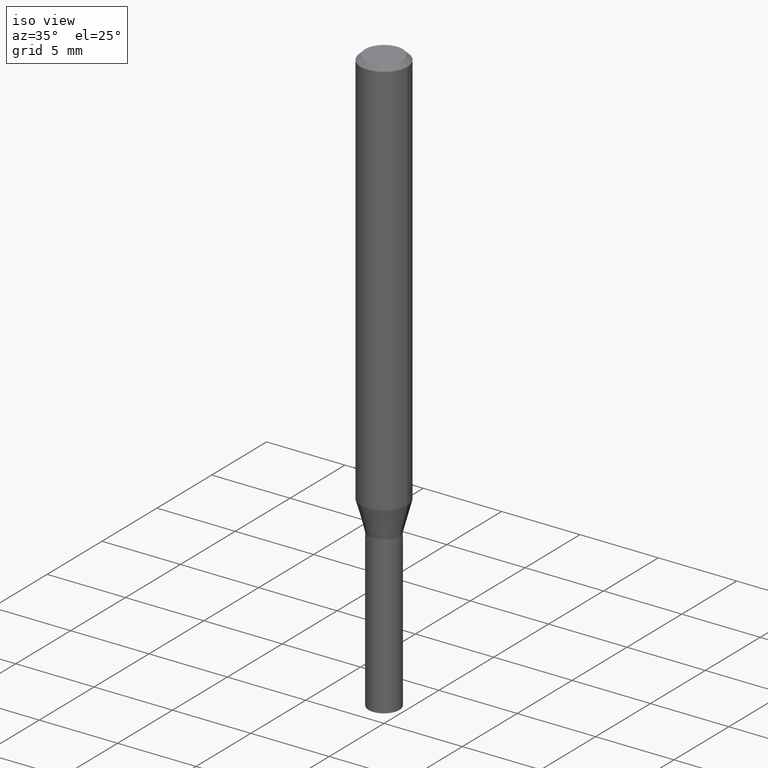
[diagram: clean part render]
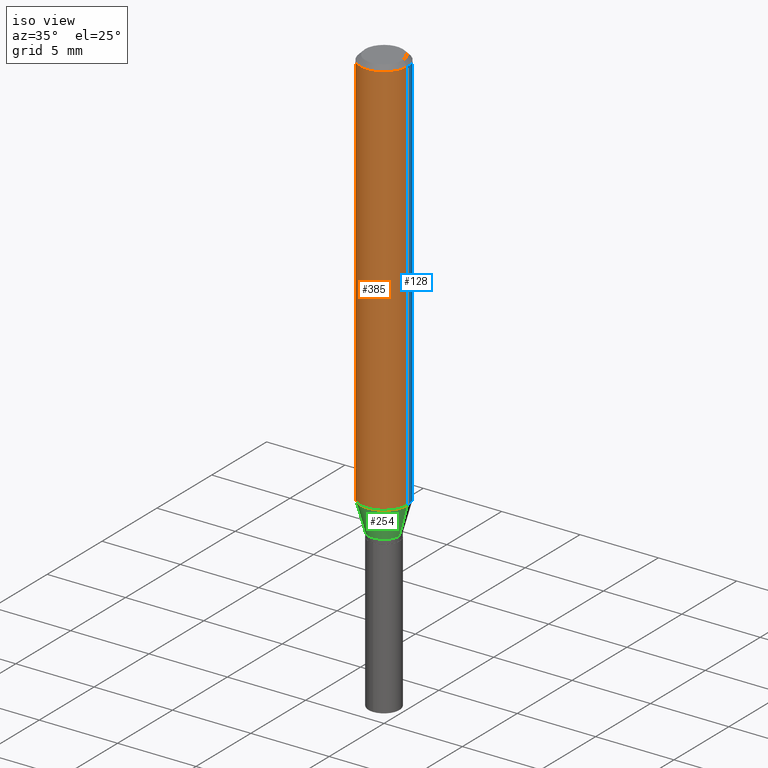
[diagram: same view with three faces highlighted in distinct colors, each labeled with its STEP entity id]
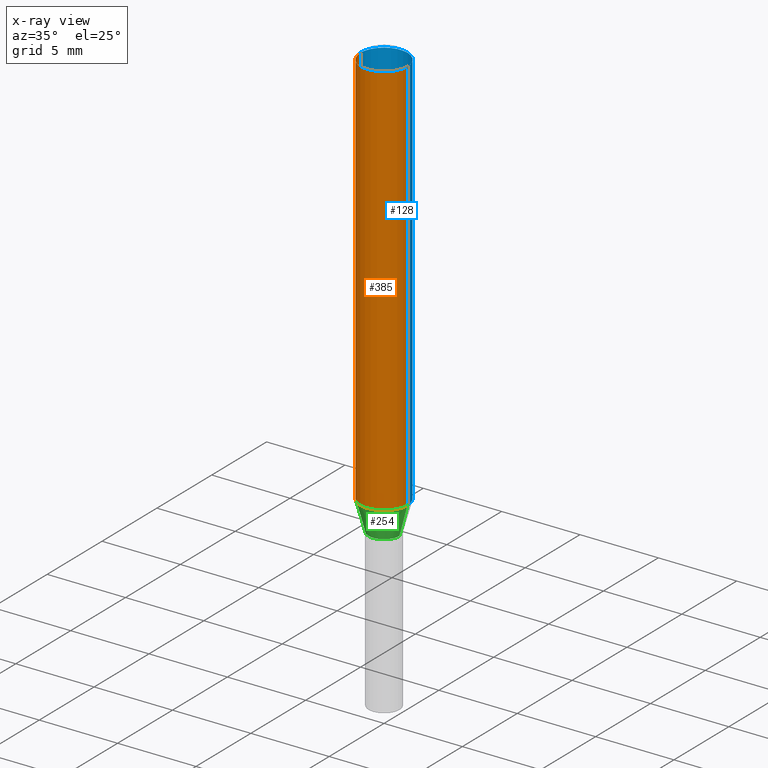
[diagram: x-ray of the same camera — body ghosted, the three highlighted faces saturated]
A machine part, iso view with three faces highlighted in distinct colors.
The next image is the same camera in x-ray (body ghosted, the three faces saturated) — at least one of them is partly hidden behind the body in this view.
Their STEP definitions:

[orange] entity #385 — the highlighted cylindrical surface (edge-blend (fillet) strip) has radius 1.4999 mm, axis along (-0, 0, 1).
#16 = DIRECTION ( 'NONE',  ( 1.000000000000000000, -6.982962677686266711E-15, 0.000000000000000000 ) ) ;
#17 = VECTOR ( 'NONE', #355, 39.37007874015748143 ) ;
#19 = VERTEX_POINT ( 'NONE', #294 ) ;
#49 = DIRECTION ( 'NONE',  ( 1.000000000000000000, -6.982962677686266711E-15, 4.876176775795935793E-29 ) ) ;
#51 = EDGE_CURVE ( 'NONE', #302, #19, #70, .T. ) ;
#57 = DIRECTION ( 'NONE',  ( -2.445468806185136597E-29, 3.491481338843145583E-15, 1.000000000000000000 ) ) ;
#70 = LINE ( 'NONE', #265, #255 ) ;
#73 = CARTESIAN_POINT ( 'NONE',  ( 0.05905000000000011628, -3.929403776508231470E-15, -1.007325971146729948 ) ) ;
#80 = CIRCLE ( 'NONE', #479, 0.05904999999999999832 ) ;
#89 = EDGE_CURVE ( 'NONE', #302, #164, #332, .T. ) ;
#104 = VERTEX_POINT ( 'NONE', #213 ) ;
#136 = DIRECTION ( 'NONE',  ( -2.445468806185136597E-29, 3.491481338843145583E-15, 1.000000000000000000 ) ) ;
#160 = EDGE_LOOP ( 'NONE', ( #289, #307, #476, #257 ) ) ;
#164 = VERTEX_POINT ( 'NONE', #73 ) ;
#177 = CARTESIAN_POINT ( 'NONE',  ( 2.463384240099476969E-29, -3.517059830390856155E-15, -1.007325971146729948 ) ) ;
#178 = DIRECTION ( 'NONE',  ( -2.445468806185136597E-29, 3.491481338843145583E-15, 1.000000000000000000 ) ) ;
#208 = CARTESIAN_POINT ( 'NONE',  ( 0.000000000000000000, 0.000000000000000000, 0.000000000000000000 ) ) ;
#210 = DIRECTION ( 'NONE',  ( -2.445468806185136877E-29, 3.491481338843145188E-15, 1.000000000000000000 ) ) ;
#213 = CARTESIAN_POINT ( 'NONE',  ( 0.05904999999999999832, -4.535783407291118600E-16, -0.01181000000000007044 ) ) ;
#242 = FACE_OUTER_BOUND ( 'NONE', #160, .T. ) ;
#255 = VECTOR ( 'NONE', #210, 39.37007874015748143 ) ;
#257 = ORIENTED_EDGE ( 'NONE', *, *, #427, .F. ) ;
#265 = CARTESIAN_POINT ( 'NONE',  ( -0.05905000000000006077, 4.195754854663395916E-16, -2.904631170795524694E-30 ) ) ;
#281 = CARTESIAN_POINT ( 'NONE',  ( 2.888098660104663766E-31, -4.123439461173779647E-17, -0.01181000000000007044 ) ) ;
#289 = ORIENTED_EDGE ( 'NONE', *, *, #51, .F. ) ;
#294 = CARTESIAN_POINT ( 'NONE',  ( -0.05904999999999999832, -1.359571627034956660E-15, -0.01181000000000007044 ) ) ;
#302 = VERTEX_POINT ( 'NONE', #460 ) ;
#307 = ORIENTED_EDGE ( 'NONE', *, *, #89, .T. ) ;
#332 = CIRCLE ( 'NONE', #416, 0.05905000000000011628 ) ;
#355 = DIRECTION ( 'NONE',  ( -2.445468806185136877E-29, 3.491481338843145188E-15, 1.000000000000000000 ) ) ;
#385 = ADVANCED_FACE ( 'NONE', ( #242 ), #435, .T. ) ;
#403 = LINE ( 'NONE', #467, #17 ) ;
#405 = AXIS2_PLACEMENT_3D ( 'NONE', #208, #136, #49 ) ;
#416 = AXIS2_PLACEMENT_3D ( 'NONE', #177, #57, #458 ) ;
#427 = EDGE_CURVE ( 'NONE', #19, #104, #80, .T. ) ;
#435 = CYLINDRICAL_SURFACE ( 'NONE', #405, 0.05905000000000006077 ) ;
#449 = EDGE_CURVE ( 'NONE', #164, #104, #403, .T. ) ;
#458 = DIRECTION ( 'NONE',  ( 1.000000000000000000, -6.982962677686266711E-15, 0.000000000000000000 ) ) ;
#460 = CARTESIAN_POINT ( 'NONE',  ( -0.05905000000000011628, -3.097484344924516662E-15, -1.007325971146729948 ) ) ;
#467 = CARTESIAN_POINT ( 'NONE',  ( 0.05905000000000006077, -4.123439461173744764E-16, 2.879382386107503023E-30 ) ) ;
#476 = ORIENTED_EDGE ( 'NONE', *, *, #449, .T. ) ;
#479 = AXIS2_PLACEMENT_3D ( 'NONE', #281, #178, #16 ) ;

[blue] entity #128 — the highlighted cylindrical surface (edge-blend (fillet) strip) has radius 1.4999 mm, axis along (-0, 0, 1).
#17 = VECTOR ( 'NONE', #355, 39.37007874015748143 ) ;
#19 = VERTEX_POINT ( 'NONE', #294 ) ;
#48 = DIRECTION ( 'NONE',  ( -2.445468806185136597E-29, 3.491481338843145583E-15, 1.000000000000000000 ) ) ;
#51 = EDGE_CURVE ( 'NONE', #302, #19, #70, .T. ) ;
#70 = LINE ( 'NONE', #265, #255 ) ;
#73 = CARTESIAN_POINT ( 'NONE',  ( 0.05905000000000011628, -3.929403776508231470E-15, -1.007325971146729948 ) ) ;
#82 = CARTESIAN_POINT ( 'NONE',  ( 2.463384240099476969E-29, -3.517059830390856155E-15, -1.007325971146729948 ) ) ;
#100 = ORIENTED_EDGE ( 'NONE', *, *, #51, .T. ) ;
#104 = VERTEX_POINT ( 'NONE', #213 ) ;
#128 = ADVANCED_FACE ( 'NONE', ( #453 ), #320, .T. ) ;
#142 = AXIS2_PLACEMENT_3D ( 'NONE', #422, #48, #389 ) ;
#164 = VERTEX_POINT ( 'NONE', #73 ) ;
#173 = CIRCLE ( 'NONE', #142, 0.05904999999999999832 ) ;
#199 = EDGE_CURVE ( 'NONE', #104, #19, #173, .T. ) ;
#210 = DIRECTION ( 'NONE',  ( -2.445468806185136877E-29, 3.491481338843145188E-15, 1.000000000000000000 ) ) ;
#213 = CARTESIAN_POINT ( 'NONE',  ( 0.05904999999999999832, -4.535783407291118600E-16, -0.01181000000000007044 ) ) ;
#230 = ORIENTED_EDGE ( 'NONE', *, *, #268, .T. ) ;
#238 = DIRECTION ( 'NONE',  ( -2.445468806185136597E-29, 3.491481338843145583E-15, 1.000000000000000000 ) ) ;
#255 = VECTOR ( 'NONE', #210, 39.37007874015748143 ) ;
#265 = CARTESIAN_POINT ( 'NONE',  ( -0.05905000000000006077, 4.195754854663395916E-16, -2.904631170795524694E-30 ) ) ;
#268 = EDGE_CURVE ( 'NONE', #164, #302, #293, .T. ) ;
#287 = DIRECTION ( 'NONE',  ( -2.445468806185136597E-29, 3.491481338843145583E-15, 1.000000000000000000 ) ) ;
#293 = CIRCLE ( 'NONE', #450, 0.05905000000000011628 ) ;
#294 = CARTESIAN_POINT ( 'NONE',  ( -0.05904999999999999832, -1.359571627034956660E-15, -0.01181000000000007044 ) ) ;
#300 = AXIS2_PLACEMENT_3D ( 'NONE', #397, #287, #413 ) ;
#302 = VERTEX_POINT ( 'NONE', #460 ) ;
#320 = CYLINDRICAL_SURFACE ( 'NONE', #300, 0.05905000000000006077 ) ;
#355 = DIRECTION ( 'NONE',  ( -2.445468806185136877E-29, 3.491481338843145188E-15, 1.000000000000000000 ) ) ;
#389 = DIRECTION ( 'NONE',  ( 1.000000000000000000, -6.982962677686266711E-15, 0.000000000000000000 ) ) ;
#397 = CARTESIAN_POINT ( 'NONE',  ( 0.000000000000000000, 0.000000000000000000, 0.000000000000000000 ) ) ;
#403 = LINE ( 'NONE', #467, #17 ) ;
#406 = EDGE_LOOP ( 'NONE', ( #230, #100, #463, #428 ) ) ;
#413 = DIRECTION ( 'NONE',  ( 1.000000000000000000, -6.982962677686266711E-15, 4.876176775795935793E-29 ) ) ;
#422 = CARTESIAN_POINT ( 'NONE',  ( 2.888098660104663766E-31, -4.123439461173779647E-17, -0.01181000000000007044 ) ) ;
#426 = DIRECTION ( 'NONE',  ( 1.000000000000000000, -6.982962677686266711E-15, 0.000000000000000000 ) ) ;
#428 = ORIENTED_EDGE ( 'NONE', *, *, #449, .F. ) ;
#449 = EDGE_CURVE ( 'NONE', #164, #104, #403, .T. ) ;
#450 = AXIS2_PLACEMENT_3D ( 'NONE', #82, #238, #426 ) ;
#453 = FACE_OUTER_BOUND ( 'NONE', #406, .T. ) ;
#460 = CARTESIAN_POINT ( 'NONE',  ( -0.05905000000000011628, -3.097484344924516662E-15, -1.007325971146729948 ) ) ;
#463 = ORIENTED_EDGE ( 'NONE', *, *, #199, .F. ) ;
#467 = CARTESIAN_POINT ( 'NONE',  ( 0.05905000000000006077, -4.123439461173744764E-16, 2.879382386107503023E-30 ) ) ;

[green] entity #254 — the highlighted conical surface has half-angle 15 deg.
#18 = EDGE_CURVE ( 'NONE', #201, #302, #119, .T. ) ;
#21 = CARTESIAN_POINT ( 'NONE',  ( 2.648198170217884181E-29, -3.780925141833242313E-15, -1.082899999999999974 ) ) ;
#27 = ORIENTED_EDGE ( 'NONE', *, *, #18, .F. ) ;
#43 = CARTESIAN_POINT ( 'NONE',  ( -0.03880000000000000115, -3.524612281788902517E-15, -1.082899999999999974 ) ) ;
#47 = EDGE_CURVE ( 'NONE', #201, #304, #341, .T. ) ;
#56 = ORIENTED_EDGE ( 'NONE', *, *, #89, .F. ) ;
#57 = DIRECTION ( 'NONE',  ( -2.445468806185136597E-29, 3.491481338843145583E-15, 1.000000000000000000 ) ) ;
#67 = DIRECTION ( 'NONE',  ( 1.000000000000000000, -6.982962677686260400E-15, 0.000000000000000000 ) ) ;
#73 = CARTESIAN_POINT ( 'NONE',  ( 0.05905000000000011628, -3.929403776508231470E-15, -1.007325971146729948 ) ) ;
#75 = ORIENTED_EDGE ( 'NONE', *, *, #457, .T. ) ;
#85 = CARTESIAN_POINT ( 'NONE',  ( 0.03880000000000000115, -4.051864093727469133E-15, -1.082899999999999974 ) ) ;
#89 = EDGE_CURVE ( 'NONE', #302, #164, #332, .T. ) ;
#103 = VECTOR ( 'NONE', #176, 39.37007874015748854 ) ;
#119 = LINE ( 'NONE', #382, #323 ) ;
#121 = CARTESIAN_POINT ( 'NONE',  ( 2.648198170217884181E-29, -3.780925141833242313E-15, -1.082899999999999974 ) ) ;
#164 = VERTEX_POINT ( 'NONE', #73 ) ;
#166 = FACE_OUTER_BOUND ( 'NONE', #481, .T. ) ;
#176 = DIRECTION ( 'NONE',  ( 0.2588190451025211836, 1.565188264969622559E-15, 0.9659258262890679791 ) ) ;
#177 = CARTESIAN_POINT ( 'NONE',  ( 2.463384240099476969E-29, -3.517059830390856155E-15, -1.007325971146729948 ) ) ;
#201 = VERTEX_POINT ( 'NONE', #43 ) ;
#203 = DIRECTION ( 'NONE',  ( 1.000000000000000000, -6.982962677686260400E-15, 0.000000000000000000 ) ) ;
#209 = LINE ( 'NONE', #363, #103 ) ;
#254 = ADVANCED_FACE ( 'NONE', ( #166 ), #317, .T. ) ;
#302 = VERTEX_POINT ( 'NONE', #460 ) ;
#304 = VERTEX_POINT ( 'NONE', #85 ) ;
#310 = DIRECTION ( 'NONE',  ( -0.2588190451025211836, 5.211531920934547886E-15, 0.9659258262890679791 ) ) ;
#317 = CONICAL_SURFACE ( 'NONE', #356, 0.03880000000000000115, 0.2617993877991499074 ) ;
#323 = VECTOR ( 'NONE', #310, 39.37007874015748854 ) ;
#332 = CIRCLE ( 'NONE', #416, 0.05905000000000011628 ) ;
#341 = CIRCLE ( 'NONE', #469, 0.03880000000000000115 ) ;
#356 = AXIS2_PLACEMENT_3D ( 'NONE', #121, #432, #203 ) ;
#360 = ORIENTED_EDGE ( 'NONE', *, *, #47, .T. ) ;
#363 = CARTESIAN_POINT ( 'NONE',  ( 0.03880000000000000115, -4.051864093727469133E-15, -1.082899999999999974 ) ) ;
#382 = CARTESIAN_POINT ( 'NONE',  ( -0.03880000000000000115, -3.505234560358323432E-15, -1.082899999999999974 ) ) ;
#416 = AXIS2_PLACEMENT_3D ( 'NONE', #177, #57, #458 ) ;
#432 = DIRECTION ( 'NONE',  ( -2.445468806185136597E-29, 3.491481338843145583E-15, 1.000000000000000000 ) ) ;
#446 = DIRECTION ( 'NONE',  ( -2.445468806185136597E-29, 3.491481338843145583E-15, 1.000000000000000000 ) ) ;
#457 = EDGE_CURVE ( 'NONE', #304, #164, #209, .T. ) ;
#458 = DIRECTION ( 'NONE',  ( 1.000000000000000000, -6.982962677686266711E-15, 0.000000000000000000 ) ) ;
#460 = CARTESIAN_POINT ( 'NONE',  ( -0.05905000000000011628, -3.097484344924516662E-15, -1.007325971146729948 ) ) ;
#469 = AXIS2_PLACEMENT_3D ( 'NONE', #21, #446, #67 ) ;
#481 = EDGE_LOOP ( 'NONE', ( #27, #360, #75, #56 ) ) ;